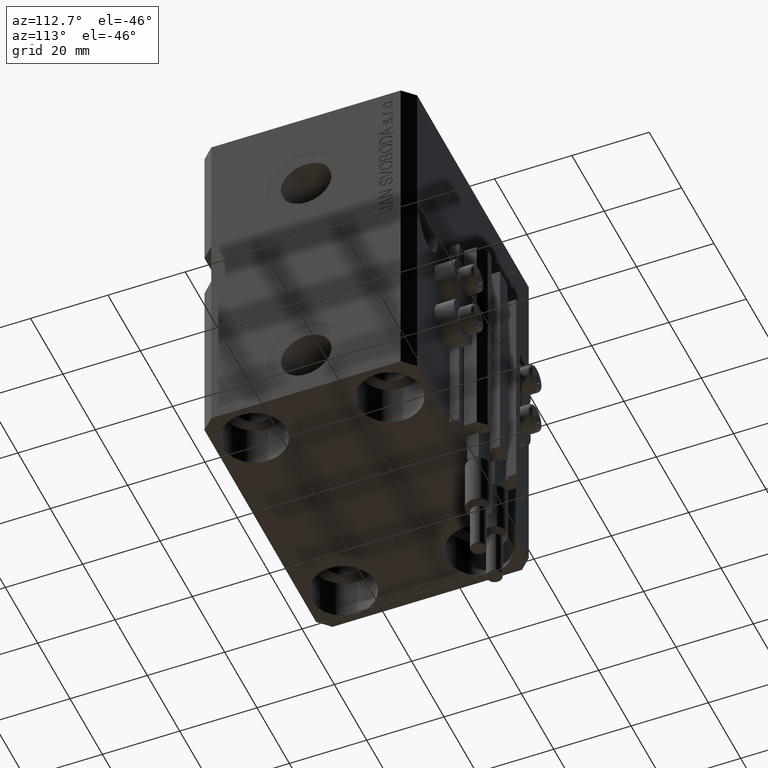
[diagram: clean part render]
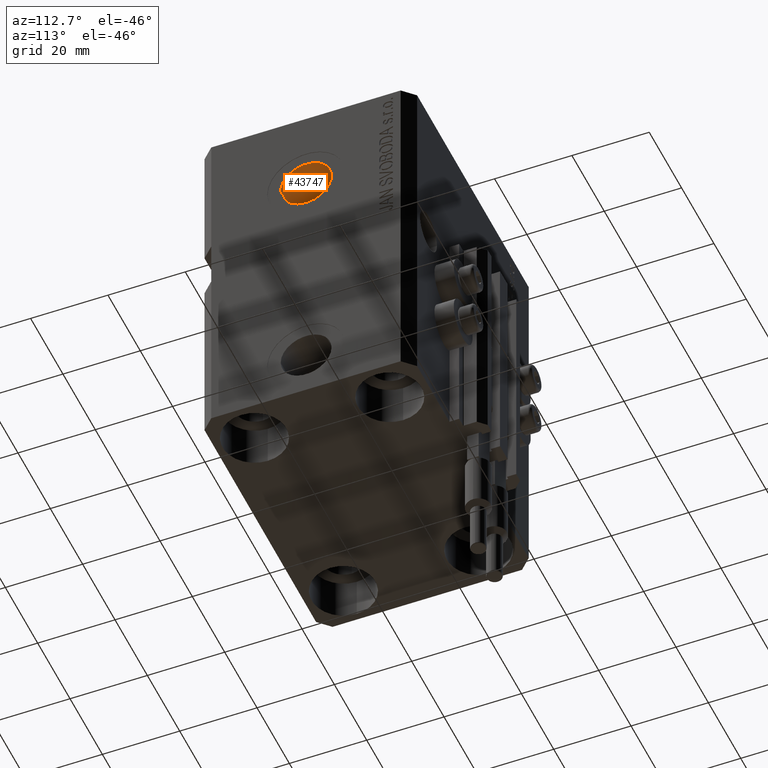
[diagram: same view with one face highlighted and labeled with its STEP entity id]
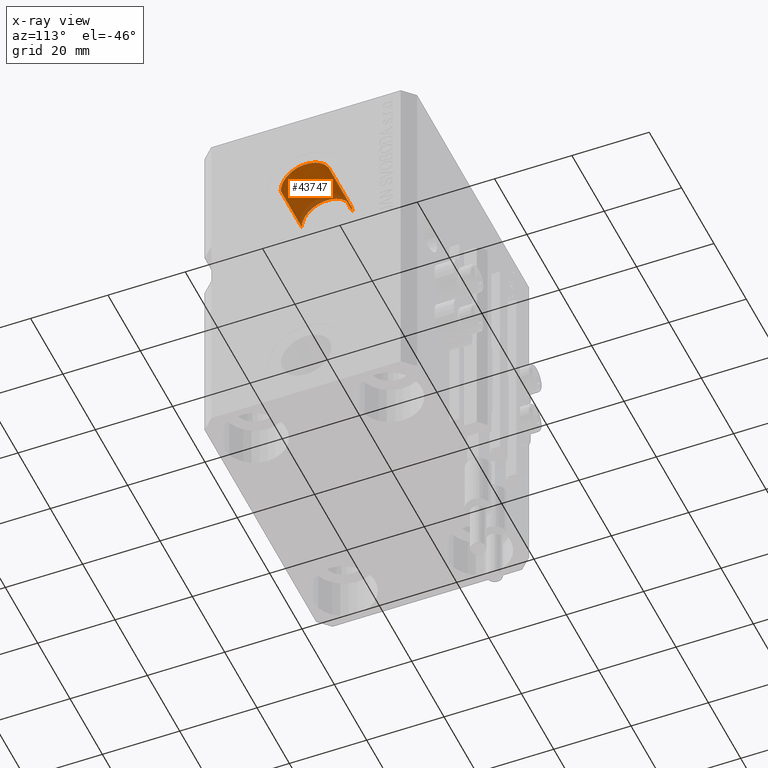
[diagram: x-ray of the same camera — body ghosted, the highlighted face saturated]
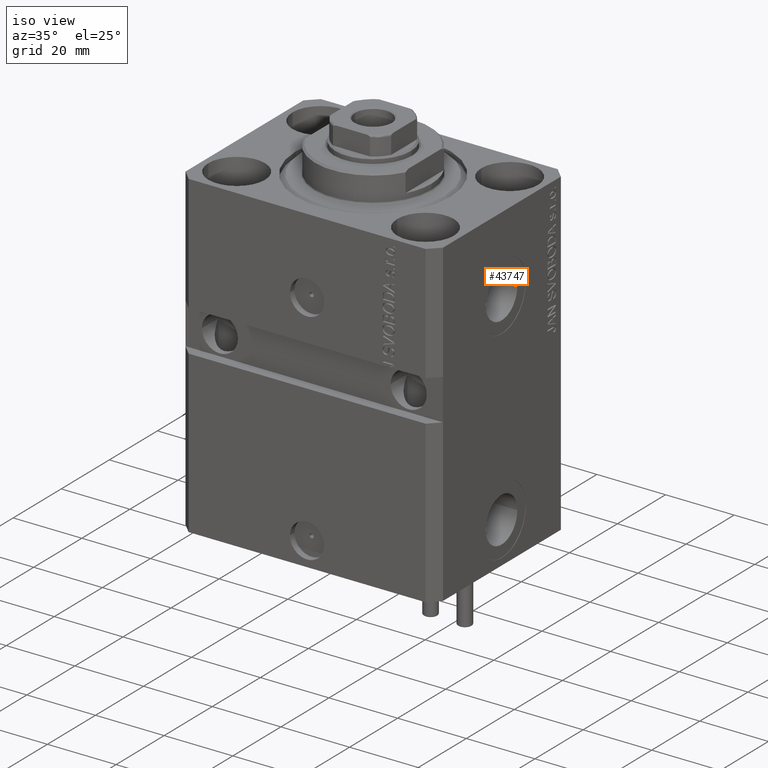
[diagram: same view with one face highlighted and labeled with its STEP entity id]
A machine part, auxiliary view. The second image highlights one B-rep face of the part: STEP entity #43747.
The next image is the same camera in x-ray: the body ghosted, the highlighted face saturated — about 11% of this face is hidden behind the body in this view.
A second angle (iso view) of the same face is appended — the face is thin or edge-on in the first view.
In plain terms, the highlighted cylindrical surface (edge-blend (fillet) strip) has radius 6.58 mm, axis along (1, -0, 0).
Its self-contained STEP definition (entity closure, byte-faithful):
#496 = DIRECTION ( 'NONE',  ( 1.000000000000000000, -1.334402673828349134E-14, 0.000000000000000000 ) ) ;
#2040 = DIRECTION ( 'NONE',  ( 1.000000000000000000, -1.334402673828349292E-14, -0.000000000000000000 ) ) ;
#2483 = CARTESIAN_POINT ( 'NONE',  ( 37.40000000000016200, -6.580000000000500116, -22.00000000000000000 ) ) ;
#3211 = VERTEX_POINT ( 'NONE', #29387 ) ;
#3868 = LINE ( 'NONE', #14372, #30477 ) ;
#3938 = ORIENTED_EDGE ( 'NONE', *, *, #23954, .T. ) ;
#4473 = EDGE_CURVE ( 'NONE', #14693, #10961, #34863, .T. ) ;
#6419 = DIRECTION ( 'NONE',  ( 1.318178933113074700E-14, 1.000000000000000000, 0.000000000000000000 ) ) ;
#7829 = DIRECTION ( 'NONE',  ( 1.000000000000000000, -1.334402673828349292E-14, -0.000000000000000000 ) ) ;
#8324 = EDGE_LOOP ( 'NONE', ( #30403, #43863, #3938, #46981 ) ) ;
#8959 = EDGE_CURVE ( 'NONE', #12459, #14693, #40040, .T. ) ;
#9781 = EDGE_CURVE ( 'NONE', #3211, #10961, #19870, .T. ) ;
#10961 = VERTEX_POINT ( 'NONE', #2483 ) ;
#12459 = VERTEX_POINT ( 'NONE', #43847 ) ;
#13270 = FACE_OUTER_BOUND ( 'NONE', #8324, .T. ) ;
#14372 = CARTESIAN_POINT ( 'NONE',  ( 24.40000000000034319, 6.579999999999677662, -22.00000000000000000 ) ) ;
#14693 = VERTEX_POINT ( 'NONE', #39118 ) ;
#15373 = DIRECTION ( 'NONE',  ( 1.370906090437597808E-14, 1.000000000000000000, 0.000000000000000000 ) ) ;
#17403 = CYLINDRICAL_SURFACE ( 'NONE', #47416, 6.580000000000002736 ) ;
#19087 = AXIS2_PLACEMENT_3D ( 'NONE', #32372, #25082, #44534 ) ;
#19439 = VECTOR ( 'NONE', #7829, 1000.000000000000000 ) ;
#19870 = CIRCLE ( 'NONE', #38519, 6.580000000000002736 ) ;
#23954 = EDGE_CURVE ( 'NONE', #12459, #3211, #3868, .T. ) ;
#25082 = DIRECTION ( 'NONE',  ( 1.000000000000000000, -1.334402673828349134E-14, 0.000000000000000000 ) ) ;
#29387 = CARTESIAN_POINT ( 'NONE',  ( 37.40000000000033964, 6.579999999999503579, -22.00000000000000000 ) ) ;
#30403 = ORIENTED_EDGE ( 'NONE', *, *, #4473, .F. ) ;
#30477 = VECTOR ( 'NONE', #33587, 1000.000000000000000 ) ;
#32372 = CARTESIAN_POINT ( 'NONE',  ( 24.40000000000025437, -3.255942524141206186E-13, -22.00000000000000000 ) ) ;
#33587 = DIRECTION ( 'NONE',  ( 1.000000000000000000, -1.334402673828349292E-14, -0.000000000000000000 ) ) ;
#34863 = LINE ( 'NONE', #41201, #19439 ) ;
#38519 = AXIS2_PLACEMENT_3D ( 'NONE', #41409, #496, #15373 ) ;
#39118 = CARTESIAN_POINT ( 'NONE',  ( 24.40000000000016911, -6.580000000000327809, -22.00000000000000000 ) ) ;
#39550 = CARTESIAN_POINT ( 'NONE',  ( 24.40000000000025437, -3.255942524141206186E-13, -22.00000000000000000 ) ) ;
#40040 = CIRCLE ( 'NONE', #19087, 6.580000000000002736 ) ;
#41201 = CARTESIAN_POINT ( 'NONE',  ( 24.40000000000016911, -6.580000000000327809, -22.00000000000000000 ) ) ;
#41409 = CARTESIAN_POINT ( 'NONE',  ( 37.40000000000025437, -4.990666000118059729E-13, -22.00000000000000000 ) ) ;
#43747 = ADVANCED_FACE ( 'NONE', ( #13270 ), #17403, .F. ) ;
#43847 = CARTESIAN_POINT ( 'NONE',  ( 24.40000000000034319, 6.579999999999677662, -22.00000000000000000 ) ) ;
#43863 = ORIENTED_EDGE ( 'NONE', *, *, #8959, .F. ) ;
#44534 = DIRECTION ( 'NONE',  ( 1.318178933113074700E-14, 1.000000000000000000, 0.000000000000000000 ) ) ;
#46981 = ORIENTED_EDGE ( 'NONE', *, *, #9781, .T. ) ;
#47416 = AXIS2_PLACEMENT_3D ( 'NONE', #39550, #2040, #6419 ) ;